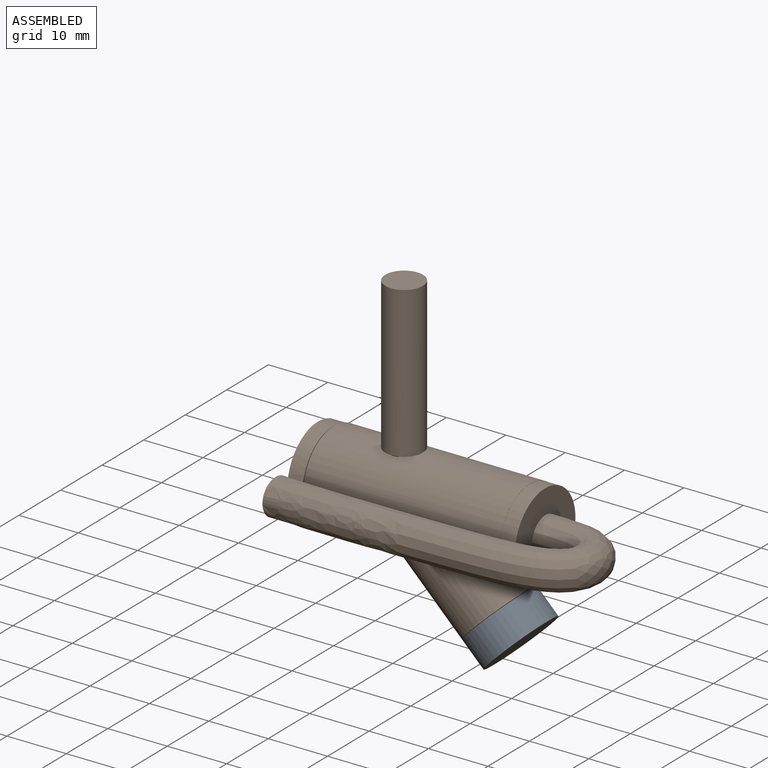
[diagram: assembled view]
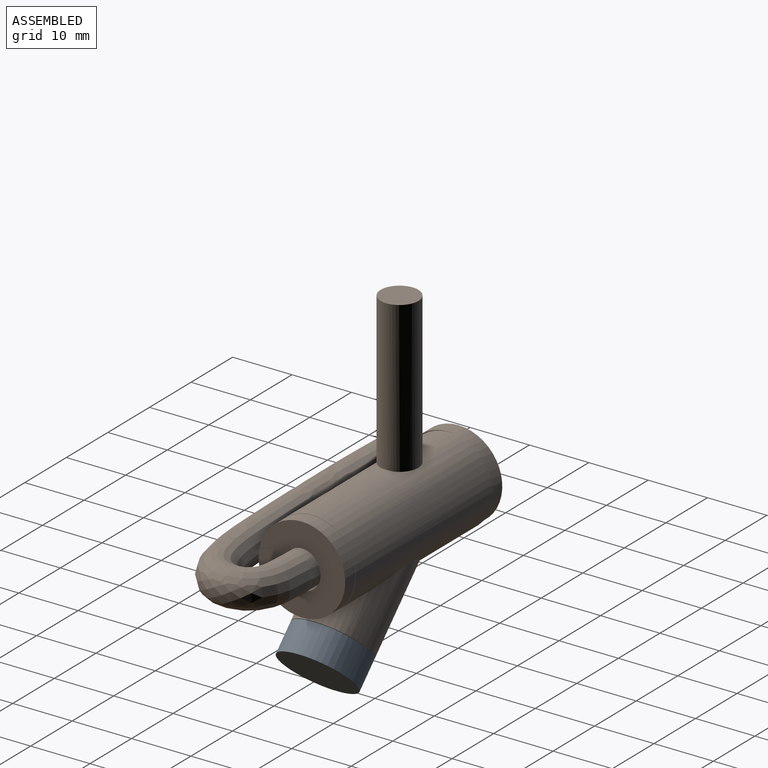
[diagram: assembled view, second angle]
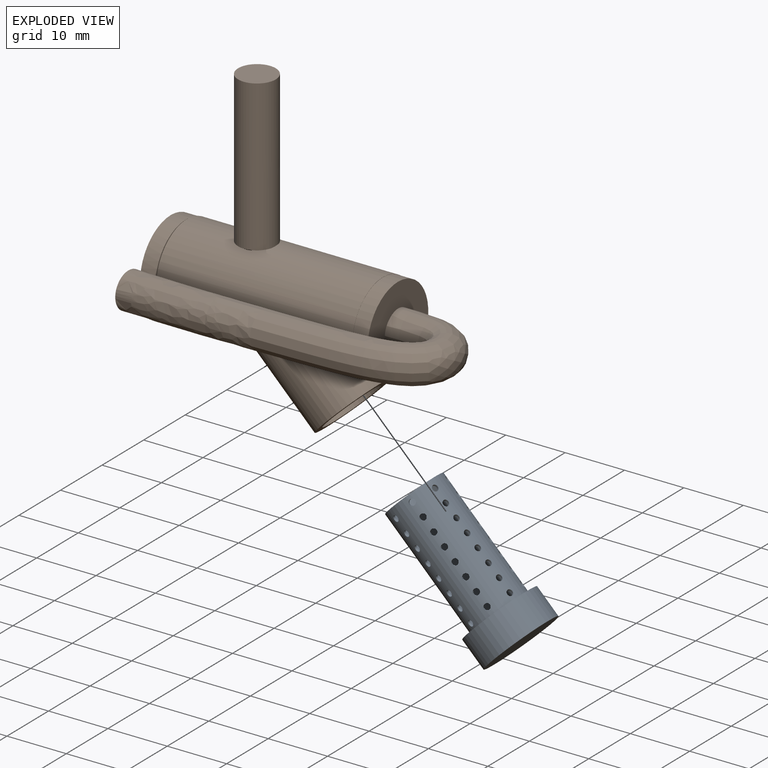
[diagram: exploded view]
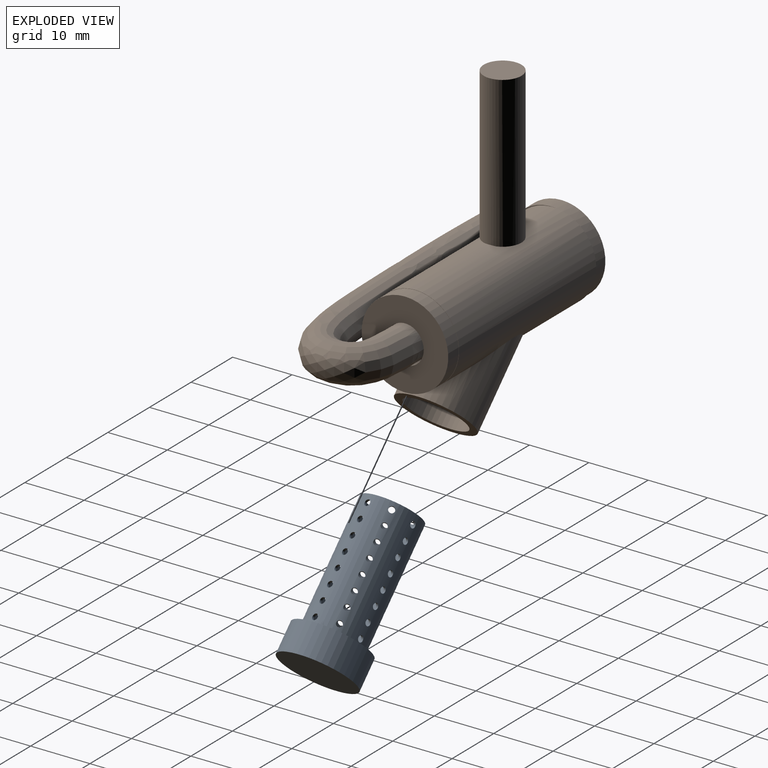
[diagram: exploded view, second angle]
ASSEMBLY  parts=2 mates=2
PART A: 71 faces, bbox 12.7x12.7x25.4 mm
  f0: cylinder r=4.57mm len=20.32mm, axis (0,0,-1), area 531.7mm2, adj f2,f3,f4,f5,f6,f7,f8,f9
  f1: cylinder r=4.95mm len=20.32mm, axis (0,0,-1), area 580.4mm2, adj f2,f3,f4,f5,f6,f7,f8,f9
  f2: cylinder r=0.51mm len=1.02mm, axis (1,0,0), area 1.2mm2, adj f0,f1
  f3: cylinder r=0.51mm len=1.02mm, axis (-1,0,0), area 1.2mm2, adj f0,f1
  f4: cylinder r=0.51mm len=1.02mm, axis (0,-1,0), area 1.2mm2, adj f0,f1
  f5: cylinder r=0.51mm len=1.02mm, axis (0,1,0), area 1.2mm2, adj f0,f1
  f6: cylinder r=0.51mm len=1.02mm, axis (-0.71,0.71,0), area 1.2mm2, adj f0,f1
  f7: cylinder r=0.51mm len=1.02mm, axis (0.71,-0.71,0), area 1.2mm2, adj f0,f1
  f8: cylinder r=0.51mm len=1.02mm, axis (0.71,0.71,0), area 1.2mm2, adj f0,f1
  f9: cylinder r=0.51mm len=1.02mm, axis (-0.71,-0.71,0), area 1.2mm2, adj f0,f1
  f10: cylinder r=0.51mm len=1.02mm, axis (1,0,0), area 1.2mm2, adj f0,f1
  f11: cylinder r=0.51mm len=1.02mm, axis (-1,0,0), area 1.2mm2, adj f0,f1
  f12: cylinder r=0.51mm len=1.02mm, axis (0,-1,0), area 1.2mm2, adj f0,f1
  f13: cylinder r=0.51mm len=1.02mm, axis (0,1,0), area 1.2mm2, adj f0,f1
  f14: cylinder r=0.51mm len=1.02mm, axis (-0.71,0.71,0), area 1.2mm2, adj f0,f1
  f15: cylinder r=0.51mm len=1.02mm, axis (0.71,-0.71,0), area 1.2mm2, adj f0,f1
  f16: cylinder r=0.51mm len=1.02mm, axis (0.71,0.71,0), area 1.2mm2, adj f0,f1
  f17: cylinder r=0.51mm len=1.02mm, axis (-0.71,-0.71,0), area 1.2mm2, adj f0,f1
  f18: cylinder r=0.51mm len=1.02mm, axis (1,0,0), area 1.2mm2, adj f0,f1
  f19: cylinder r=0.51mm len=1.02mm, axis (-1,0,0), area 1.2mm2, adj f0,f1
  f20: cylinder r=0.51mm len=1.02mm, axis (0,-1,0), area 1.2mm2, adj f0,f1
  f21: cylinder r=0.51mm len=1.02mm, axis (0,1,0), area 1.2mm2, adj f0,f1
  f22: cylinder r=0.51mm len=1.02mm, axis (-0.71,0.71,0), area 1.2mm2, adj f0,f1
  f23: cylinder r=0.51mm len=1.02mm, axis (0.71,-0.71,0), area 1.2mm2, adj f0,f1
  f24: cylinder r=0.51mm len=1.02mm, axis (0.71,0.71,0), area 1.2mm2, adj f0,f1
  f25: cylinder r=0.51mm len=1.02mm, axis (-0.71,-0.71,0), area 1.2mm2, adj f0,f1
  f26: cylinder r=0.51mm len=1.02mm, axis (1,0,0), area 1.2mm2, adj f0,f1
  f27: cylinder r=0.51mm len=1.02mm, axis (-1,0,0), area 1.2mm2, adj f0,f1
  f28: cylinder r=0.51mm len=1.02mm, axis (0,-1,0), area 1.2mm2, adj f0,f1
  f29: cylinder r=0.51mm len=1.02mm, axis (0,1,0), area 1.2mm2, adj f0,f1
  f30: cylinder r=0.51mm len=1.02mm, axis (-0.71,0.71,0), area 1.2mm2, adj f0,f1
  f31: cylinder r=0.51mm len=1.02mm, axis (0.71,-0.71,0), area 1.2mm2, adj f0,f1
  f32: cylinder r=0.51mm len=1.02mm, axis (0.71,0.71,0), area 1.2mm2, adj f0,f1
  f33: cylinder r=0.51mm len=1.02mm, axis (-0.71,-0.71,0), area 1.2mm2, adj f0,f1
  f34: cylinder r=0.51mm len=1.02mm, axis (1,0,0), area 1.2mm2, adj f0,f1
  f35: cylinder r=0.51mm len=1.02mm, axis (-1,0,0), area 1.2mm2, adj f0,f1
  f36: cylinder r=0.51mm len=1.02mm, axis (0,-1,0), area 1.2mm2, adj f0,f1
  f37: cylinder r=0.51mm len=1.02mm, axis (0,1,0), area 1.2mm2, adj f0,f1
  f38: cylinder r=0.51mm len=1.02mm, axis (-0.71,0.71,0), area 1.2mm2, adj f0,f1
  f39: cylinder r=0.51mm len=1.02mm, axis (0.71,-0.71,0), area 1.2mm2, adj f0,f1
  f40: cylinder r=0.51mm len=1.02mm, axis (0.71,0.71,0), area 1.2mm2, adj f0,f1
  f41: cylinder r=0.51mm len=1.02mm, axis (-0.71,-0.71,0), area 1.2mm2, adj f0,f1
  f42: cylinder r=0.51mm len=1.02mm, axis (1,0,0), area 1.2mm2, adj f0,f1
  f43: cylinder r=0.51mm len=1.02mm, axis (-1,0,0), area 1.2mm2, adj f0,f1
  f44: cylinder r=0.51mm len=1.02mm, axis (0,-1,0), area 1.2mm2, adj f0,f1
  f45: cylinder r=0.51mm len=1.02mm, axis (0,1,0), area 1.2mm2, adj f0,f1
  f46: cylinder r=0.51mm len=1.02mm, axis (-0.71,0.71,0), area 1.2mm2, adj f0,f1
  f47: cylinder r=0.51mm len=1.02mm, axis (0.71,-0.71,0), area 1.2mm2, adj f0,f1
  f48: cylinder r=0.51mm len=1.02mm, axis (0.71,0.71,0), area 1.2mm2, adj f0,f1
  f49: cylinder r=0.51mm len=1.02mm, axis (-0.71,-0.71,0), area 1.2mm2, adj f0,f1
  f50: cylinder r=0.51mm len=1.02mm, axis (1,0,0), area 1.2mm2, adj f0,f1
  f51: cylinder r=0.51mm len=1.02mm, axis (-1,0,0), area 1.2mm2, adj f0,f1
  f52: cylinder r=0.51mm len=1.02mm, axis (0,-1,0), area 1.2mm2, adj f0,f1
  f53: cylinder r=0.51mm len=1.02mm, axis (0,1,0), area 1.2mm2, adj f0,f1
  f54: cylinder r=0.51mm len=1.02mm, axis (-0.71,0.71,0), area 1.2mm2, adj f0,f1
  f55: cylinder r=0.51mm len=1.02mm, axis (0.71,-0.71,0), area 1.2mm2, adj f0,f1
  f56: cylinder r=0.51mm len=1.02mm, axis (0.71,0.71,0), area 1.2mm2, adj f0,f1
  f57: cylinder r=0.51mm len=1.02mm, axis (-0.71,-0.71,0), area 1.2mm2, adj f0,f1
  f58: plane 9.91x9.91mm, normal (0,0,1), area 11.4mm2, adj f0,f1
  f59: cylinder r=0.51mm len=1.02mm, axis (1,0,0), area 1.2mm2, adj f0,f1
  f60: cylinder r=0.51mm len=1.02mm, axis (-1,0,0), area 1.2mm2, adj f0,f1
  f61: cylinder r=0.51mm len=1.02mm, axis (0,-1,0), area 1.2mm2, adj f0,f1
  f62: cylinder r=0.51mm len=1.02mm, axis (0,1,0), area 1.2mm2, adj f0,f1
  f63: cylinder r=0.51mm len=1.02mm, axis (-0.71,0.71,0), area 1.2mm2, adj f0,f1
  f64: cylinder r=0.51mm len=1.02mm, axis (0.71,-0.71,0), area 1.2mm2, adj f0,f1
  f65: cylinder r=0.51mm len=1.02mm, axis (0.71,0.71,0), area 1.2mm2, adj f0,f1
  f66: cylinder r=0.51mm len=1.02mm, axis (-0.71,-0.71,0), area 1.2mm2, adj f0,f1
  f67: plane 12.7x12.7mm, normal (0,0,1), area 49.7mm2, adj f1,f69
  f68: plane 12.7x12.7mm, normal (0,0,-1), area 126.8mm2, adj f69
  f69: cylinder r=6.35mm len=12.7mm, axis (0,0,1), area 202.7mm2, adj f67,f68
  f70: plane 9.14x9.14mm, normal (0,0,1), area 65.7mm2, adj f0
PART B: 33 faces, bbox 55.6x25.5x51.6 mm
  f0: plane 6.93x6.91mm, normal (-1,0.07,0), area 29mm2, adj f1
  f1: bspline ~54.64x23.5mm, area 1326.6mm2, adj f0,f2,f30,f31,f32
  f2: plane 12.62x12.62mm, normal (-1,0,0), area 82.6mm2, adj f1,f3,f30
  f3: cylinder r=6.03mm len=12.07mm, axis (1,0,0), area 188.8mm2, adj f2,f4,f29
  f4: plane 12.19x12.19mm, normal (-1,0,0), area 7.3mm2, adj f3,f5,f29
  f5: cylinder r=6.1mm len=27.94mm, axis (1,0,0), area 921.1mm2, adj f4,f6,f10,f11
  f6: cylinder r=2.5mm len=5mm, axis (0,0,-1), area 8.6mm2, adj f5,f7
  f7: plane 5x5mm, normal (0,0,-1), area 12.6mm2, adj f6,f8
  f8: cylinder r=1.5mm len=3mm, axis (0,0,1), area 18.8mm2, adj f7,f9
  f9: plane 3x3mm, normal (0,0,-1), area 7.1mm2, adj f8
  f10: plane 12.19x12.19mm, normal (1,0,0), area 116.7mm2, adj f5
  f11: cylinder r=5.08mm len=18.53mm, axis (0.71,0,-0.71), area 397.1mm2, adj f5,f12
  f12: plane 12.7x8.98mm, normal (0.71,0,-0.71), area 45.6mm2, adj f11,f13
  f13: cylinder r=6.35mm len=19.76mm, axis (0.71,0,-0.71), area 446.4mm2, adj f12,f14,f15,f28
  f14: plane 4.95x2.76mm, normal (-0.71,0,0.71), area 0.5mm2, adj f13,f15
  f15: cylinder r=7.34mm len=33.02mm, axis (1,0,0), area 1298.9mm2, adj f13,f14,f16,f17,f18,f20,f21,f22
  f16: cylinder r=2.5mm len=4.56mm, axis (0,0,-1), area 0mm2, adj f15,f17
  f17: plane 6.13x2.27mm, normal (0,0,-1), area 4.6mm2, adj f15,f16,f18
  f18: cylinder r=3.18mm len=25.4mm, axis (0,0,-1), area 507mm2, adj f15,f17,f19,f20
  f19: plane 6.35x6.35mm, normal (0,0,1), area 31.7mm2, adj f18
  f20: plane 6.96x3.19mm, normal (0,0,-1), area 5mm2, adj f15,f18,f21
  f21: cylinder r=2.5mm len=4.74mm, axis (0,0,-1), area 0mm2, adj f15,f20
  f22: plane 14.7x8.21mm, normal (1,0,0), area 4.2mm2, adj f15,f23
  f23: cylinder r=7.35mm len=14.7mm, axis (1,0,0), area 117.3mm2, adj f22,f24,f25
  f24: plane 14.7x14.7mm, normal (-1,0,0), area 169.7mm2, adj f23
  f25: plane 14.65x7.34mm, normal (-1,0,0), area 3.5mm2, adj f15,f23
  f26: plane 14.67x14.67mm, normal (1,0,0), area 1.5mm2, adj f15,f27
  f27: cylinder r=7.3mm len=14.61mm, axis (-1,0,0), area 116.6mm2, adj f26,f31
  f28: plane 6.62x3.7mm, normal (-0.71,0,0.71), area 1.6mm2, adj f13,f15
  f29: cylinder r=6.35mm len=5.22mm, axis (0.71,0,-0.71), area 5.8mm2, adj f3,f4
  f30: cylinder r=3.17mm len=6.34mm, axis (-1,0,0), area 38.1mm2, adj f1,f2,f31
  f31: plane 15.38x15.38mm, normal (1,0,0), area 135.8mm2, adj f1,f27,f30
  f32: plane 6.93x6.91mm, normal (-1,0.06,0), area 29mm2, adj f1
PLACE A rot(axis=(-0.23,-0.81,0.54),54.3deg) t=(-16.01,5.69,17.1)mm
PLACE B t=(-16.03,5.69,17.16)mm fixed
MATE cylindrical B.f11 <-> A.f69  axis (0.71,0,-0.71) through (-16.03,5.69,17.16)mm
MATE parallel B.f11 <-> A.f70  axis (0.71,0,-0.71) through (-16.03,5.69,17.16)mm
